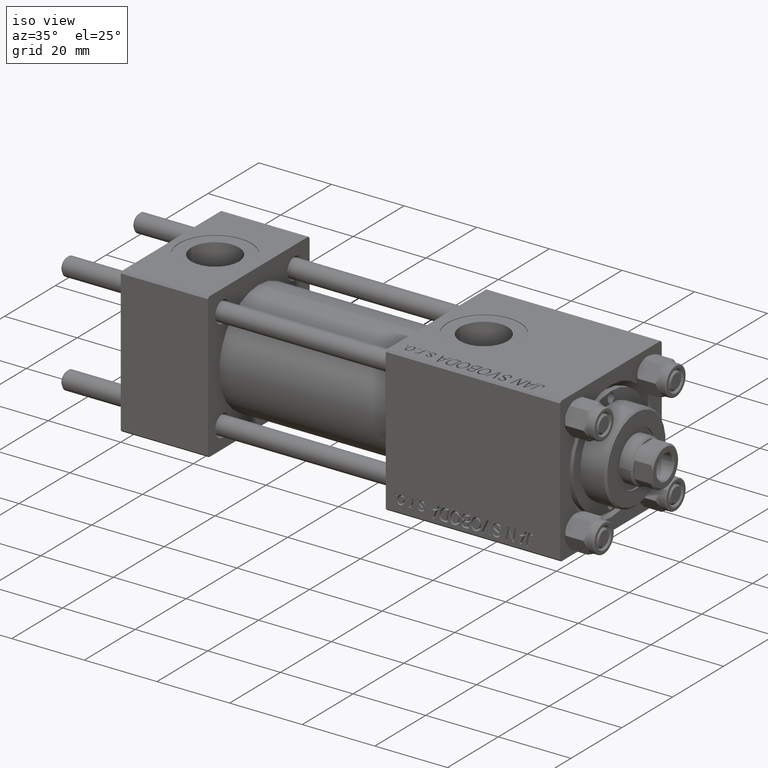
[diagram: clean part render]
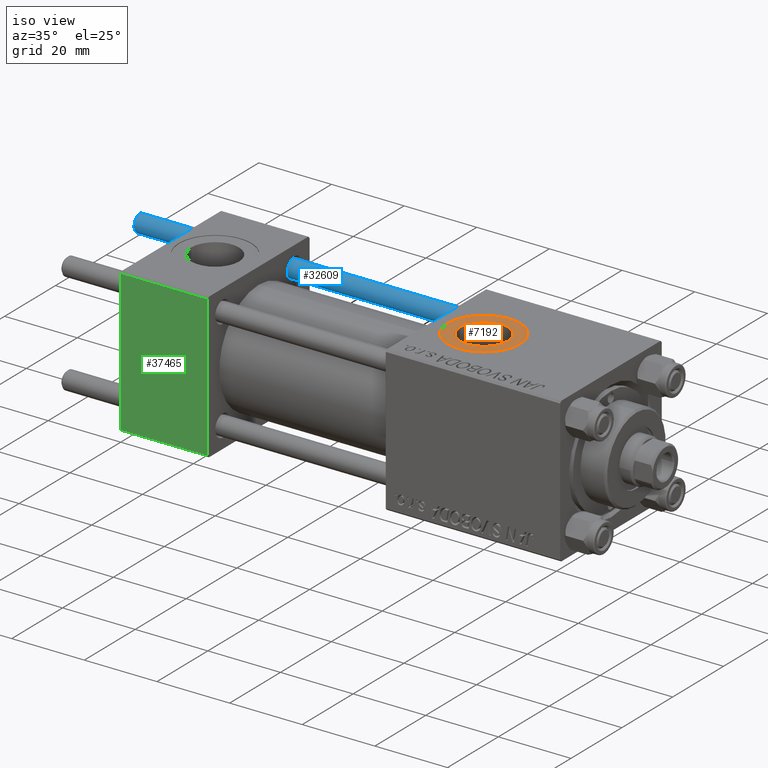
[diagram: same view with three faces highlighted in distinct colors, each labeled with its STEP entity id]
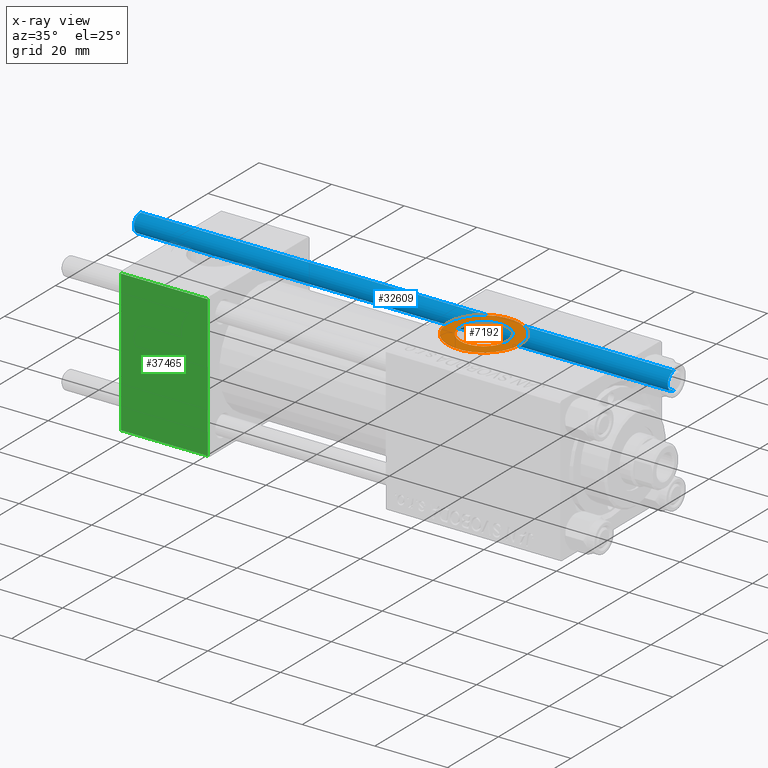
[diagram: x-ray of the same camera — body ghosted, the three highlighted faces saturated]
A machine part, iso view with three faces highlighted in distinct colors.
The next image is the same camera in x-ray (body ghosted, the three faces saturated) — at least one of them is partly hidden behind the body in this view.
Their STEP definitions:

[orange] entity #7192 — the highlighted planar face has unit normal (0, 0, 1).
#775 = CIRCLE ( 'NONE', #29005, 10.00000000000000888 ) ;
#2950 = EDGE_LOOP ( 'NONE', ( #12559, #49694 ) ) ;
#3624 = VERTEX_POINT ( 'NONE', #37555 ) ;
#4426 = EDGE_LOOP ( 'NONE', ( #35973, #44760 ) ) ;
#4944 = EDGE_CURVE ( 'NONE', #33515, #12925, #20439, .T. ) ;
#5920 = AXIS2_PLACEMENT_3D ( 'NONE', #37263, #9483, #21613 ) ;
#7192 = ADVANCED_FACE ( 'NONE', ( #21977, #38581 ), #15636, .T. ) ;
#8799 = CIRCLE ( 'NONE', #19303, 6.580000000000002736 ) ;
#9483 = DIRECTION ( 'NONE',  ( 0.000000000000000000, 0.000000000000000000, 1.000000000000000000 ) ) ;
#9973 = EDGE_CURVE ( 'NONE', #38427, #3624, #10895, .T. ) ;
#10172 = CARTESIAN_POINT ( 'NONE',  ( 92.58000000000001251, -9.289058821378482497E-16, 19.80000000000000071 ) ) ;
#10895 = CIRCLE ( 'NONE', #20576, 6.580000000000002736 ) ;
#11306 = DIRECTION ( 'NONE',  ( 1.000000000000000000, 0.000000000000000000, 0.000000000000000000 ) ) ;
#12559 = ORIENTED_EDGE ( 'NONE', *, *, #44025, .T. ) ;
#12925 = VERTEX_POINT ( 'NONE', #18084 ) ;
#13269 = DIRECTION ( 'NONE',  ( -0.000000000000000000, -0.000000000000000000, -1.000000000000000000 ) ) ;
#13524 = DIRECTION ( 'NONE',  ( 1.000000000000000000, 0.000000000000000000, 0.000000000000000000 ) ) ;
#15636 = PLANE ( 'NONE',  #46315 ) ;
#18084 = CARTESIAN_POINT ( 'NONE',  ( 76.00000000000000000, -5.100766768294525560E-16, 19.80000000000000071 ) ) ;
#19303 = AXIS2_PLACEMENT_3D ( 'NONE', #24760, #27554, #20724 ) ;
#20439 = CIRCLE ( 'NONE', #5920, 10.00000000000000888 ) ;
#20576 = AXIS2_PLACEMENT_3D ( 'NONE', #32963, #13269, #13524 ) ;
#20724 = DIRECTION ( 'NONE',  ( 1.000000000000000000, 0.000000000000000000, 0.000000000000000000 ) ) ;
#21613 = DIRECTION ( 'NONE',  ( 1.000000000000000000, 0.000000000000000000, 0.000000000000000000 ) ) ;
#21977 = FACE_BOUND ( 'NONE', #2950, .T. ) ;
#22469 = CARTESIAN_POINT ( 'NONE',  ( 86.00000000000000000, -1.734723475976806897E-15, 19.80000000000000071 ) ) ;
#24760 = CARTESIAN_POINT ( 'NONE',  ( 86.00000000000000000, -1.734723475976806897E-15, 19.80000000000000071 ) ) ;
#27554 = DIRECTION ( 'NONE',  ( -0.000000000000000000, -0.000000000000000000, -1.000000000000000000 ) ) ;
#29005 = AXIS2_PLACEMENT_3D ( 'NONE', #49686, #41599, #11306 ) ;
#30045 = DIRECTION ( 'NONE',  ( 1.000000000000000000, 0.000000000000000000, -0.000000000000000000 ) ) ;
#32963 = CARTESIAN_POINT ( 'NONE',  ( 86.00000000000000000, -1.734723475976806897E-15, 19.80000000000000071 ) ) ;
#33515 = VERTEX_POINT ( 'NONE', #41874 ) ;
#35973 = ORIENTED_EDGE ( 'NONE', *, *, #4944, .T. ) ;
#37263 = CARTESIAN_POINT ( 'NONE',  ( 86.00000000000000000, -1.734723475976806897E-15, 19.80000000000000071 ) ) ;
#37555 = CARTESIAN_POINT ( 'NONE',  ( 79.42000000000000171, -1.734723475976806897E-15, 19.80000000000000071 ) ) ;
#38427 = VERTEX_POINT ( 'NONE', #10172 ) ;
#38581 = FACE_OUTER_BOUND ( 'NONE', #4426, .T. ) ;
#41599 = DIRECTION ( 'NONE',  ( 0.000000000000000000, 0.000000000000000000, 1.000000000000000000 ) ) ;
#41874 = CARTESIAN_POINT ( 'NONE',  ( 96.00000000000001421, -1.734723475976806897E-15, 19.80000000000000071 ) ) ;
#44025 = EDGE_CURVE ( 'NONE', #3624, #38427, #8799, .T. ) ;
#44142 = EDGE_CURVE ( 'NONE', #12925, #33515, #775, .T. ) ;
#44760 = ORIENTED_EDGE ( 'NONE', *, *, #44142, .T. ) ;
#46315 = AXIS2_PLACEMENT_3D ( 'NONE', #22469, #49971, #30045 ) ;
#49686 = CARTESIAN_POINT ( 'NONE',  ( 86.00000000000000000, -1.734723475976806897E-15, 19.80000000000000071 ) ) ;
#49694 = ORIENTED_EDGE ( 'NONE', *, *, #9973, .T. ) ;
#49971 = DIRECTION ( 'NONE',  ( 0.000000000000000000, 0.000000000000000000, 1.000000000000000000 ) ) ;

[blue] entity #32609 — the highlighted cylindrical surface (edge-blend (fillet) strip) has radius 2.5 mm, axis along (-1, -0, -0).
#1122 = ORIENTED_EDGE ( 'NONE', *, *, #37021, .F. ) ;
#1168 = ORIENTED_EDGE ( 'NONE', *, *, #42324, .T. ) ;
#1254 = EDGE_LOOP ( 'NONE', ( #1122, #13722, #7579, #1168 ) ) ;
#2597 = EDGE_CURVE ( 'NONE', #25005, #3240, #27219, .T. ) ;
#3240 = VERTEX_POINT ( 'NONE', #24052 ) ;
#3876 = CARTESIAN_POINT ( 'NONE',  ( -2.500000000000000000, 0.000000000000000000, 147.5000000000000284 ) ) ;
#4261 = CARTESIAN_POINT ( 'NONE',  ( 2.500000000000000000, 3.061616997868383141E-16, 0.5000000000000004441 ) ) ;
#4546 = CARTESIAN_POINT ( 'NONE',  ( 0.000000000000000000, 0.000000000000000000, 148.0000000000000000 ) ) ;
#5290 = DIRECTION ( 'NONE',  ( -1.000000000000000000, 0.000000000000000000, 0.000000000000000000 ) ) ;
#6192 = VECTOR ( 'NONE', #39978, 1000.000000000000000 ) ;
#6374 = CIRCLE ( 'NONE', #41845, 2.500000000000000000 ) ;
#7579 = ORIENTED_EDGE ( 'NONE', *, *, #2597, .T. ) ;
#7987 = DIRECTION ( 'NONE',  ( 0.000000000000000000, 0.000000000000000000, -1.000000000000000000 ) ) ;
#10083 = VERTEX_POINT ( 'NONE', #46061 ) ;
#10491 = CARTESIAN_POINT ( 'NONE',  ( 0.000000000000000000, 0.000000000000000000, 0.5000000000000004441 ) ) ;
#13722 = ORIENTED_EDGE ( 'NONE', *, *, #20855, .T. ) ;
#14238 = AXIS2_PLACEMENT_3D ( 'NONE', #4546, #31309, #5290 ) ;
#16798 = CARTESIAN_POINT ( 'NONE',  ( 2.500000000000000000, 3.061616997868383141E-16, 148.0000000000000000 ) ) ;
#19076 = VERTEX_POINT ( 'NONE', #4261 ) ;
#20855 = EDGE_CURVE ( 'NONE', #10083, #25005, #23237, .T. ) ;
#23237 = CIRCLE ( 'NONE', #24854, 2.500000000000000000 ) ;
#24052 = CARTESIAN_POINT ( 'NONE',  ( -2.500000000000000000, 0.000000000000000000, 0.5000000000000004441 ) ) ;
#24474 = CYLINDRICAL_SURFACE ( 'NONE', #14238, 2.500000000000000000 ) ;
#24854 = AXIS2_PLACEMENT_3D ( 'NONE', #27425, #7987, #30975 ) ;
#25005 = VERTEX_POINT ( 'NONE', #3876 ) ;
#27219 = LINE ( 'NONE', #31263, #32445 ) ;
#27425 = CARTESIAN_POINT ( 'NONE',  ( 0.000000000000000000, 0.000000000000000000, 147.5000000000000284 ) ) ;
#28132 = LINE ( 'NONE', #16798, #6192 ) ;
#30975 = DIRECTION ( 'NONE',  ( 1.000000000000000000, 0.000000000000000000, 0.000000000000000000 ) ) ;
#31263 = CARTESIAN_POINT ( 'NONE',  ( -2.500000000000000000, 0.000000000000000000, 148.0000000000000000 ) ) ;
#31309 = DIRECTION ( 'NONE',  ( -0.000000000000000000, -0.000000000000000000, -1.000000000000000000 ) ) ;
#32445 = VECTOR ( 'NONE', #39571, 1000.000000000000000 ) ;
#32609 = ADVANCED_FACE ( 'NONE', ( #39860 ), #24474, .T. ) ;
#37007 = DIRECTION ( 'NONE',  ( -0.000000000000000000, -0.000000000000000000, 1.000000000000000000 ) ) ;
#37021 = EDGE_CURVE ( 'NONE', #10083, #19076, #28132, .T. ) ;
#39571 = DIRECTION ( 'NONE',  ( -0.000000000000000000, -0.000000000000000000, -1.000000000000000000 ) ) ;
#39860 = FACE_OUTER_BOUND ( 'NONE', #1254, .T. ) ;
#39978 = DIRECTION ( 'NONE',  ( -0.000000000000000000, -0.000000000000000000, -1.000000000000000000 ) ) ;
#41845 = AXIS2_PLACEMENT_3D ( 'NONE', #10491, #37007, #45080 ) ;
#42324 = EDGE_CURVE ( 'NONE', #3240, #19076, #6374, .T. ) ;
#45080 = DIRECTION ( 'NONE',  ( 1.000000000000000000, 0.000000000000000000, 0.000000000000000000 ) ) ;
#46061 = CARTESIAN_POINT ( 'NONE',  ( 2.500000000000000000, 3.061616997868383141E-16, 147.5000000000000284 ) ) ;

[green] entity #37465 — the highlighted planar face has unit normal (0, 1, 0).
#128 = VERTEX_POINT ( 'NONE', #25459 ) ;
#1346 = VECTOR ( 'NONE', #3481, 1000.000000000000000 ) ;
#3481 = DIRECTION ( 'NONE',  ( -1.000000000000000000, 0.000000000000000000, 0.000000000000000000 ) ) ;
#4004 = ORIENTED_EDGE ( 'NONE', *, *, #39341, .T. ) ;
#4077 = DIRECTION ( 'NONE',  ( 1.000000000000000000, 0.000000000000000000, 0.000000000000000000 ) ) ;
#4301 = CARTESIAN_POINT ( 'NONE',  ( 24.00000000000000000, -20.00000000000000355, 19.99999999999998934 ) ) ;
#7626 = CARTESIAN_POINT ( 'NONE',  ( 0.000000000000000000, -20.00000000000000000, -19.49999999999999645 ) ) ;
#8091 = CARTESIAN_POINT ( 'NONE',  ( 24.00000000000000000, -20.00000000000000000, -19.49999999999999645 ) ) ;
#8414 = DIRECTION ( 'NONE',  ( 0.000000000000000000, 8.673617379884036705E-17, -1.000000000000000000 ) ) ;
#13179 = EDGE_CURVE ( 'NONE', #22807, #128, #18399, .T. ) ;
#16179 = FACE_OUTER_BOUND ( 'NONE', #40753, .T. ) ;
#17482 = AXIS2_PLACEMENT_3D ( 'NONE', #4301, #35091, #47208 ) ;
#18399 = LINE ( 'NONE', #33789, #1346 ) ;
#19164 = VECTOR ( 'NONE', #8414, 1000.000000000000000 ) ;
#20654 = CARTESIAN_POINT ( 'NONE',  ( 24.00000000000000000, -20.00000000000000355, 19.99999999999998934 ) ) ;
#22265 = VECTOR ( 'NONE', #4077, 1000.000000000000000 ) ;
#22700 = CARTESIAN_POINT ( 'NONE',  ( 24.00000000000000000, -20.00000000000000355, 19.49999999999998224 ) ) ;
#22807 = VERTEX_POINT ( 'NONE', #22700 ) ;
#24108 = VECTOR ( 'NONE', #36058, 1000.000000000000000 ) ;
#24759 = ORIENTED_EDGE ( 'NONE', *, *, #42868, .F. ) ;
#25459 = CARTESIAN_POINT ( 'NONE',  ( 0.000000000000000000, -20.00000000000000355, 19.49999999999998224 ) ) ;
#27030 = LINE ( 'NONE', #8091, #22265 ) ;
#30617 = CARTESIAN_POINT ( 'NONE',  ( 24.00000000000000000, -20.00000000000000000, -19.49999999999999645 ) ) ;
#32379 = ORIENTED_EDGE ( 'NONE', *, *, #34441, .T. ) ;
#32661 = LINE ( 'NONE', #47815, #19164 ) ;
#33789 = CARTESIAN_POINT ( 'NONE',  ( 24.00000000000000000, -20.00000000000000355, 19.49999999999998224 ) ) ;
#33997 = ORIENTED_EDGE ( 'NONE', *, *, #13179, .T. ) ;
#34441 = EDGE_CURVE ( 'NONE', #40109, #44816, #27030, .T. ) ;
#35091 = DIRECTION ( 'NONE',  ( -0.000000000000000000, 1.000000000000000000, 8.673617379884036705E-17 ) ) ;
#35347 = PLANE ( 'NONE',  #17482 ) ;
#36058 = DIRECTION ( 'NONE',  ( 0.000000000000000000, 8.673617379884036705E-17, -1.000000000000000000 ) ) ;
#37465 = ADVANCED_FACE ( 'NONE', ( #16179 ), #35347, .F. ) ;
#39341 = EDGE_CURVE ( 'NONE', #128, #40109, #32661, .T. ) ;
#40109 = VERTEX_POINT ( 'NONE', #7626 ) ;
#40753 = EDGE_LOOP ( 'NONE', ( #4004, #32379, #24759, #33997 ) ) ;
#42868 = EDGE_CURVE ( 'NONE', #22807, #44816, #44643, .T. ) ;
#44643 = LINE ( 'NONE', #20654, #24108 ) ;
#44816 = VERTEX_POINT ( 'NONE', #30617 ) ;
#47208 = DIRECTION ( 'NONE',  ( 0.000000000000000000, -8.673617379884036705E-17, 1.000000000000000000 ) ) ;
#47815 = CARTESIAN_POINT ( 'NONE',  ( 0.000000000000000000, -20.00000000000000355, 19.99999999999998934 ) ) ;